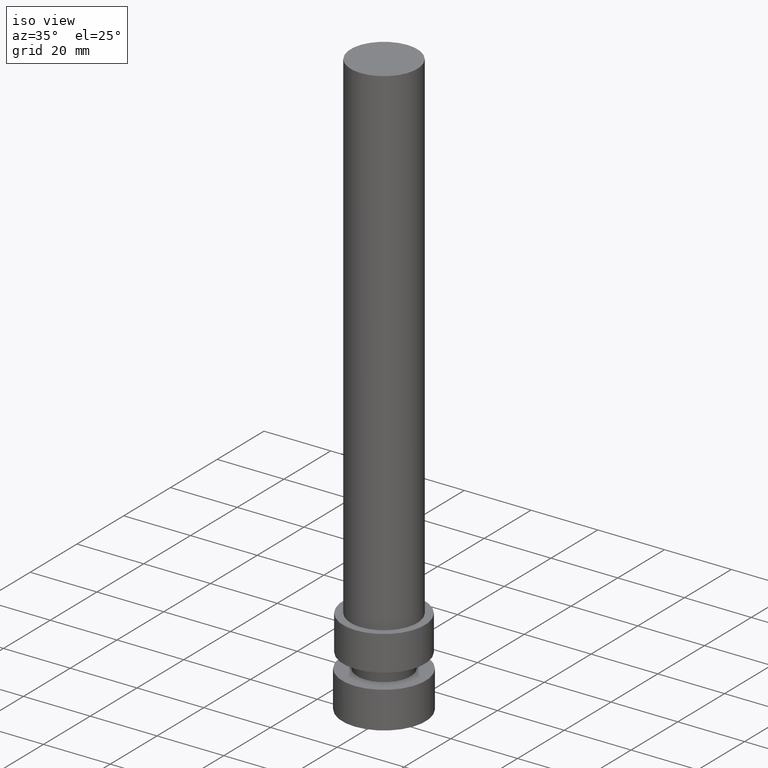
[diagram: clean part render]
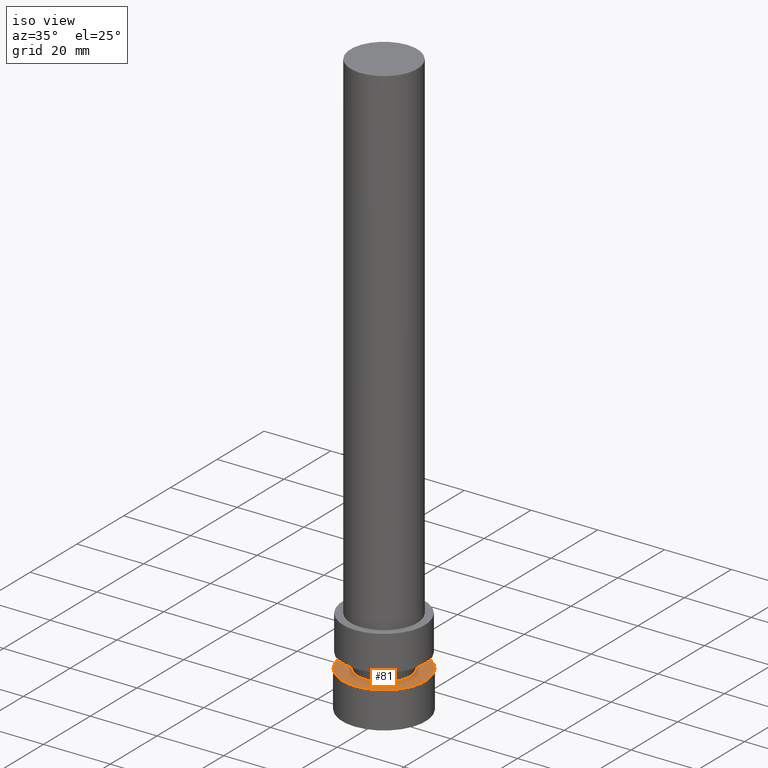
[diagram: same view with one face highlighted and labeled with its STEP entity id]
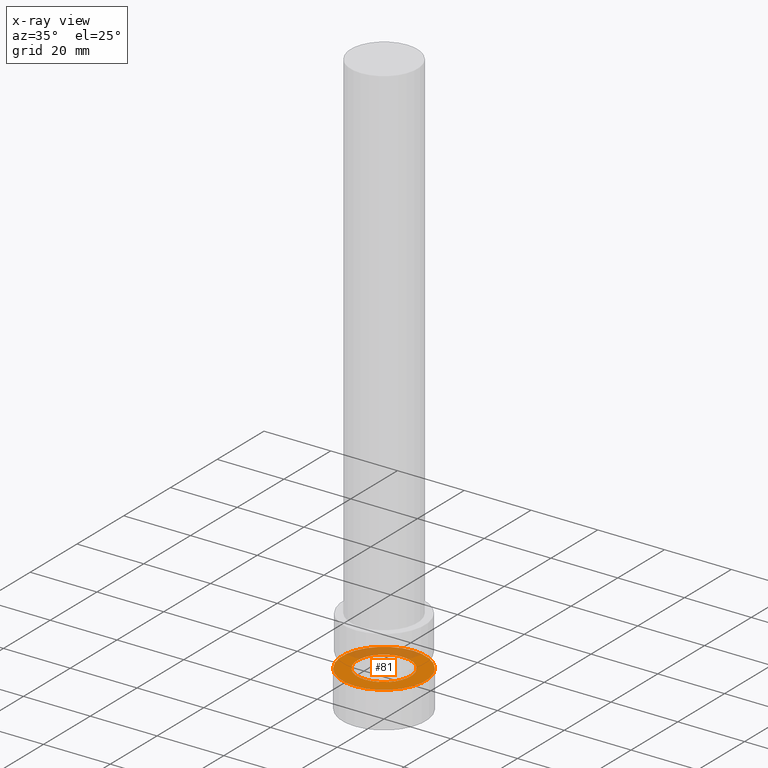
[diagram: x-ray of the same camera — body ghosted, the highlighted face saturated]
A machine part, iso view. The second image highlights one B-rep face of the part: STEP entity #81.
The next image is the same camera in x-ray: the body ghosted, the highlighted face saturated — about 27% of this face is hidden behind the body in this view.
In plain terms, the highlighted planar face has unit normal (-0, -0, 1).
Its self-contained STEP definition (entity closure, byte-faithful):
#81=ADVANCED_FACE('',(#102,#103),#104,.T.);
#102=FACE_OUTER_BOUND('',#127,.T.);
#103=FACE_BOUND('',#128,.T.);
#104=PLANE('',#129);
#127=EDGE_LOOP('',(#164));
#128=EDGE_LOOP('',(#165));
#129=AXIS2_PLACEMENT_3D('',#166,#167,#168);
#164=ORIENTED_EDGE('',*,*,#184,.F.);
#165=ORIENTED_EDGE('',*,*,#183,.T.);
#166=CARTESIAN_POINT('',(-6.73555739531045E-016,10.25,11.0));
#167=DIRECTION('',(-6.12323399573677E-017,-1.22464679914735E-016,1.0));
#168=DIRECTION('',(1.23259516440783E-032,-1.0,-1.22464679914735E-016));
#183=EDGE_CURVE('',#196,#196,#197,.T.);
#184=EDGE_CURVE('',#198,#198,#199,.T.);
#196=VERTEX_POINT('',#212);
#197=CIRCLE('',#213,8.0);
#198=VERTEX_POINT('',#214);
#199=CIRCLE('',#215,12.5);
#212=CARTESIAN_POINT('',(-6.73555739531045E-016,8.0,11.0));
#213=AXIS2_PLACEMENT_3D('',#233,#234,#235);
#214=CARTESIAN_POINT('',(-6.73555739531045E-016,12.5,11.0));
#215=AXIS2_PLACEMENT_3D('',#236,#237,#238);
#233=CARTESIAN_POINT('',(-6.73555739531045E-016,-1.34711147906209E-015,11.0));
#234=DIRECTION('',(6.12323399573677E-017,1.22464679914735E-016,-1.0));
#235=DIRECTION('',(-1.23259516440783E-032,1.0,1.22464679914735E-016));
#236=CARTESIAN_POINT('',(-6.73555739531045E-016,-1.34711147906209E-015,11.0));
#237=DIRECTION('',(6.12323399573677E-017,1.22464679914735E-016,-1.0));
#238=DIRECTION('',(-1.23259516440783E-032,1.0,1.22464679914735E-016));